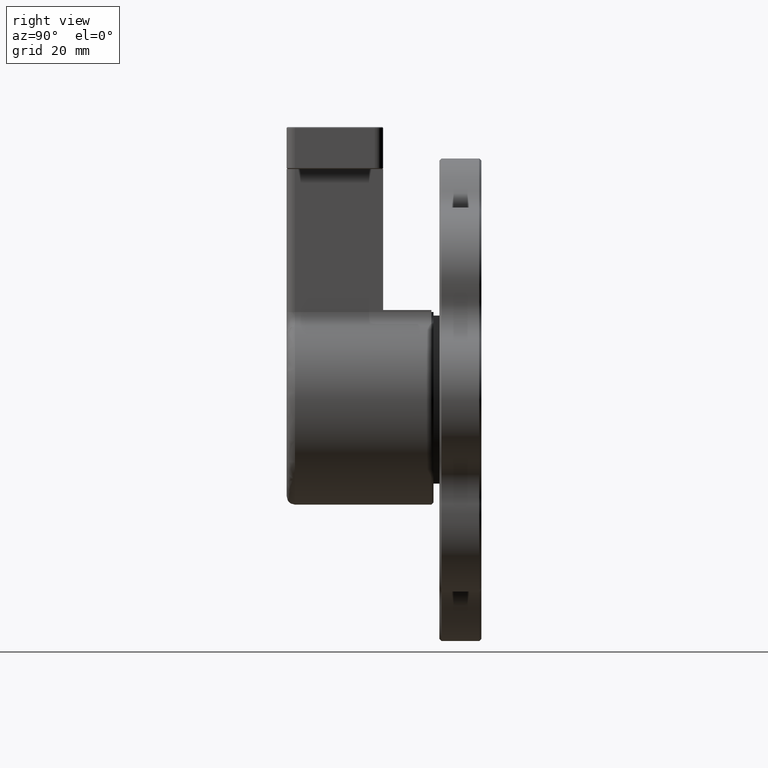
[diagram: clean part render]
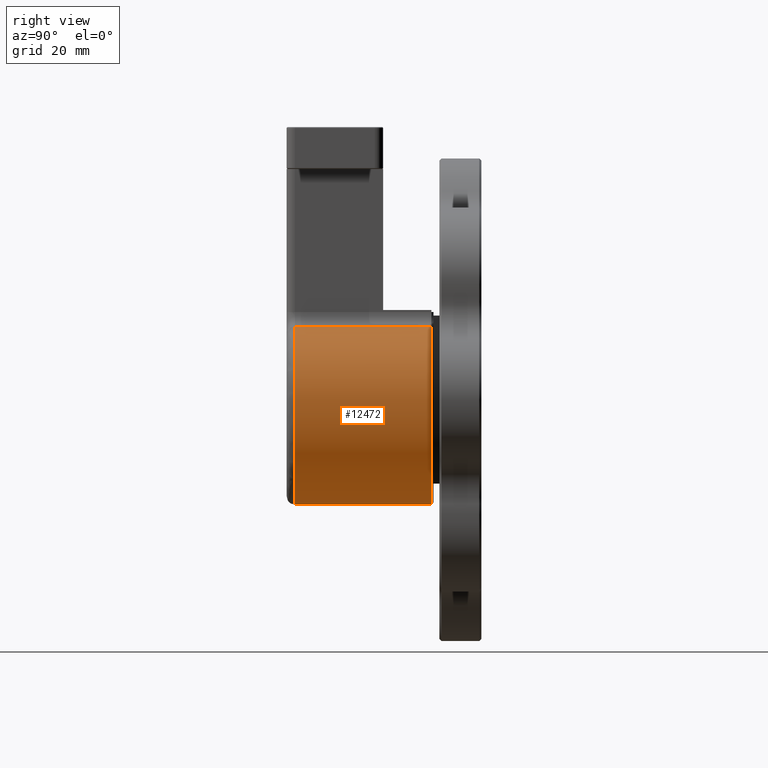
[diagram: same view with one face highlighted and labeled with its STEP entity id]
A machine part, right view. The second image highlights one B-rep face of the part: STEP entity #12472.
In plain terms, the highlighted cylindrical surface (partial cylindrical patch) has radius 25 mm, axis along (0, 1, 0).
Its self-contained STEP definition (entity closure, byte-faithful):
#14 = CARTESIAN_POINT ( 'NONE',  ( -6.661723064955271667, -4.320881950128789839, 87.43539662742306007 ) ) ;
#209 = LINE ( 'NONE', #14, #5082 ) ;
#451 = CARTESIAN_POINT ( 'NONE',  ( -6.661723064950803241, 30.17911804985053337, 87.43539662741061136 ) ) ;
#1146 = VERTEX_POINT ( 'NONE', #451 ) ;
#1895 = DIRECTION ( 'NONE',  ( 0.000000000000000000, 0.000000000000000000, 1.000000000000000000 ) ) ;
#1990 = ORIENTED_EDGE ( 'NONE', *, *, #11348, .T. ) ;
#2038 = AXIS2_PLACEMENT_3D ( 'NONE', #13783, #9232, #15262 ) ;
#2413 = ORIENTED_EDGE ( 'NONE', *, *, #15304, .T. ) ;
#2755 = CARTESIAN_POINT ( 'NONE',  ( -6.661723064955276996, -2.320881950128790283, 87.43539662742306007 ) ) ;
#3150 = DIRECTION ( 'NONE',  ( 8.326672684688672081E-16, 0.000000000000000000, 1.000000000000000000 ) ) ;
#3242 = CYLINDRICAL_SURFACE ( 'NONE', #2038, 25.00000000000000711 ) ;
#3253 = CARTESIAN_POINT ( 'NONE',  ( -42.49505639828862513, -4.320881950128789839, 87.43539662742306007 ) ) ;
#3469 = DIRECTION ( 'NONE',  ( 0.000000000000000000, 1.000000000000000000, 0.000000000000000000 ) ) ;
#3662 = CIRCLE ( 'NONE', #5215, 25.00000000000000711 ) ;
#4118 = CARTESIAN_POINT ( 'NONE',  ( -42.49505639828861092, -2.320881950128790283, 87.43539662742306007 ) ) ;
#5082 = VECTOR ( 'NONE', #9247, 1000.000000000000000 ) ;
#5124 = EDGE_LOOP ( 'NONE', ( #2413, #11932, #8139, #1990 ) ) ;
#5215 = AXIS2_PLACEMENT_3D ( 'NONE', #15682, #3469, #1895 ) ;
#5891 = CIRCLE ( 'NONE', #16907, 25.00000000000000711 ) ;
#6504 = VERTEX_POINT ( 'NONE', #2755 ) ;
#6886 = EDGE_CURVE ( 'NONE', #1146, #6504, #209, .T. ) ;
#8139 = ORIENTED_EDGE ( 'NONE', *, *, #13863, .T. ) ;
#9134 = FACE_OUTER_BOUND ( 'NONE', #5124, .T. ) ;
#9232 = DIRECTION ( 'NONE',  ( 0.000000000000000000, 1.000000000000000000, 0.000000000000000000 ) ) ;
#9247 = DIRECTION ( 'NONE',  ( -0.000000000000000000, -1.000000000000000000, -0.000000000000000000 ) ) ;
#10819 = DIRECTION ( 'NONE',  ( -0.000000000000000000, -1.000000000000000000, -0.000000000000000000 ) ) ;
#10846 = VECTOR ( 'NONE', #17057, 1000.000000000000000 ) ;
#11038 = LINE ( 'NONE', #3253, #10846 ) ;
#11348 = EDGE_CURVE ( 'NONE', #18341, #15887, #11038, .T. ) ;
#11932 = ORIENTED_EDGE ( 'NONE', *, *, #6886, .T. ) ;
#12472 = ADVANCED_FACE ( 'NONE', ( #9134 ), #3242, .T. ) ;
#13757 = CARTESIAN_POINT ( 'NONE',  ( -42.49505639826465853, 30.17911804987895863, 87.43539662741061136 ) ) ;
#13783 = CARTESIAN_POINT ( 'NONE',  ( -24.57838973162195018, -4.320881950128789839, 69.99999999999998579 ) ) ;
#13863 = EDGE_CURVE ( 'NONE', #6504, #18341, #3662, .T. ) ;
#15262 = DIRECTION ( 'NONE',  ( 0.000000000000000000, 0.000000000000000000, 1.000000000000000000 ) ) ;
#15304 = EDGE_CURVE ( 'NONE', #15887, #1146, #5891, .T. ) ;
#15682 = CARTESIAN_POINT ( 'NONE',  ( -24.57838973162195018, -2.320881950128790283, 69.99999999999998579 ) ) ;
#15887 = VERTEX_POINT ( 'NONE', #13757 ) ;
#16907 = AXIS2_PLACEMENT_3D ( 'NONE', #18040, #10819, #3150 ) ;
#17057 = DIRECTION ( 'NONE',  ( 0.000000000000000000, 1.000000000000000000, 0.000000000000000000 ) ) ;
#18040 = CARTESIAN_POINT ( 'NONE',  ( -24.57838973162195018, 30.17911804987120661, 69.99999999999998579 ) ) ;
#18341 = VERTEX_POINT ( 'NONE', #4118 ) ;